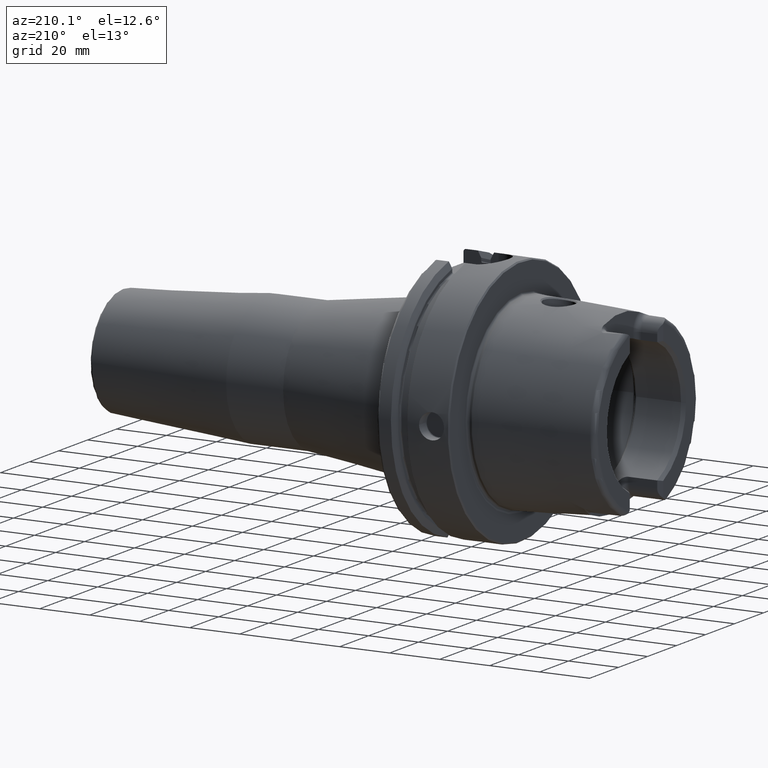
[diagram: clean part render]
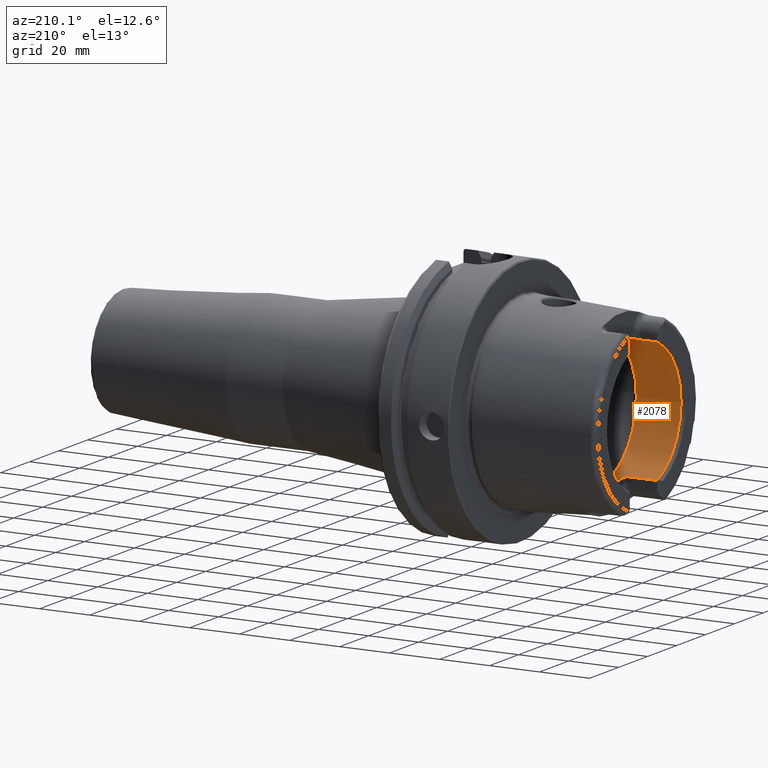
[diagram: same view with one face highlighted and labeled with its STEP entity id]
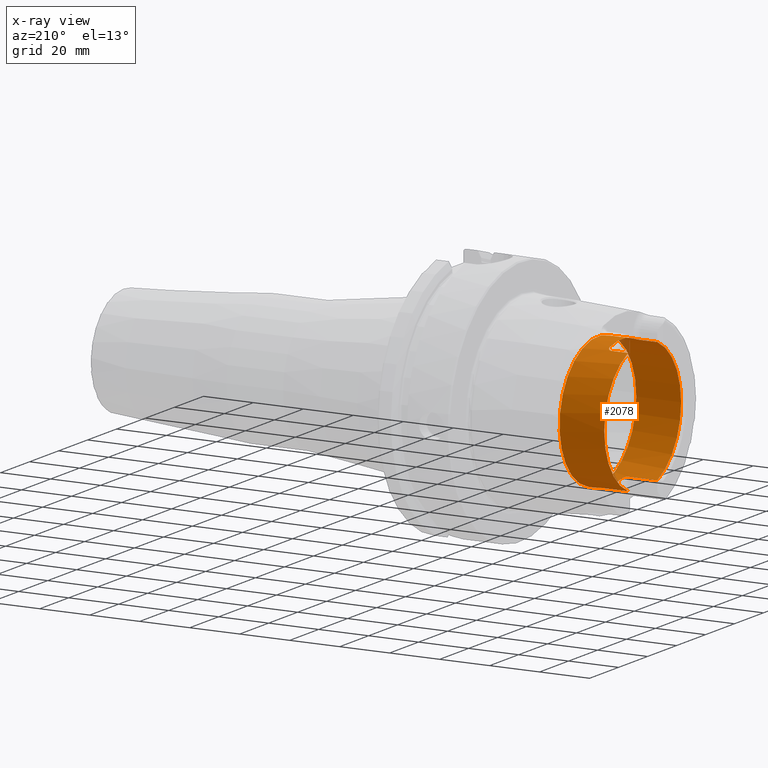
[diagram: x-ray of the same camera — body ghosted, the highlighted face saturated]
A machine part, auxiliary view. The second image highlights one B-rep face of the part: STEP entity #2078.
The next image is the same camera in x-ray: the body ghosted, the highlighted face saturated — about 1% of this face is hidden behind the body in this view.
In plain terms, the highlighted cylindrical surface (bore or boss wall) has radius 26.5 mm, axis along (-1, 0, 0).
Its self-contained STEP definition (entity closure, byte-faithful):
#80=B_SPLINE_CURVE_WITH_KNOTS('',3,(#4342,#4343,#4344,#4345,#4346,#4347,
#4348,#4349,#4350,#4351),.UNSPECIFIED.,.F.,.F.,(4,2,2,2,4),(0.307245873696209,
0.387318131676521,0.467390389656833,0.542677307505841,0.617964225354849),
 .UNSPECIFIED.);
#81=B_SPLINE_CURVE_WITH_KNOTS('',3,(#4360,#4361,#4362,#4363,#4364,#4365,
#4366,#4367,#4368,#4369),.UNSPECIFIED.,.F.,.F.,(4,2,2,2,4),(0.61796422535485,
0.694491364966707,0.771018504578565,0.849854597041439,0.928690689504313),
 .UNSPECIFIED.);
#82=B_SPLINE_CURVE_WITH_KNOTS('',3,(#4382,#4383,#4384,#4385,#4386,#4387,
#4388,#4389,#4390,#4391),.UNSPECIFIED.,.F.,.F.,(4,2,2,2,4),(0.617964225354849,
0.693251143203857,0.768538061052865,0.848610319033177,0.928682577013489),
 .UNSPECIFIED.);
#83=B_SPLINE_CURVE_WITH_KNOTS('',3,(#4411,#4412,#4413,#4414,#4415,#4416,
#4417,#4418,#4419,#4420),.UNSPECIFIED.,.F.,.F.,(4,2,2,2,4),(0.307245873696209,
0.387318131676521,0.467390389656833,0.542677307505841,0.617964225354849),
 .UNSPECIFIED.);
#202=CYLINDRICAL_SURFACE('',#2330,26.5);
#303=FACE_OUTER_BOUND('',#432,.T.);
#432=EDGE_LOOP('',(#1844,#1845,#1846,#1847,#1848,#1849,#1850,#1851,#1852,
#1853,#1854,#1855,#1856,#1857,#1858,#1859,#1860));
#485=LINE('',#3126,#593);
#493=LINE('',#3201,#601);
#497=LINE('',#3265,#605);
#556=LINE('',#4407,#664);
#560=LINE('',#4455,#668);
#593=VECTOR('',#2507,10.);
#601=VECTOR('',#2553,10.);
#605=VECTOR('',#2575,10.);
#664=VECTOR('',#2854,10.);
#668=VECTOR('',#2898,26.5);
#705=CIRCLE('',#2184,26.5);
#706=CIRCLE('',#2185,26.5);
#769=CIRCLE('',#2309,26.5);
#774=CIRCLE('',#2321,26.5);
#775=CIRCLE('',#2324,26.5);
#778=CIRCLE('',#2331,26.5);
#779=CIRCLE('',#2332,26.5);
#844=VERTEX_POINT('',#3116);
#847=VERTEX_POINT('',#3124);
#856=VERTEX_POINT('',#3173);
#858=VERTEX_POINT('',#3179);
#859=VERTEX_POINT('',#3181);
#865=VERTEX_POINT('',#3199);
#871=VERTEX_POINT('',#3232);
#876=VERTEX_POINT('',#3264);
#983=VERTEX_POINT('',#4340);
#985=VERTEX_POINT('',#4359);
#989=VERTEX_POINT('',#4380);
#990=VERTEX_POINT('',#4381);
#992=VERTEX_POINT('',#4401);
#994=VERTEX_POINT('',#4452);
#995=VERTEX_POINT('',#4453);
#1066=EDGE_CURVE('',#844,#847,#485,.T.);
#1079=EDGE_CURVE('',#858,#859,#705,.T.);
#1080=EDGE_CURVE('',#859,#856,#706,.T.);
#1089=EDGE_CURVE('',#858,#865,#493,.T.);
#1102=EDGE_CURVE('',#876,#871,#497,.T.);
#1260=EDGE_CURVE('',#983,#865,#80,.T.);
#1264=EDGE_CURVE('',#876,#985,#81,.T.);
#1270=EDGE_CURVE('',#989,#990,#82,.T.);
#1276=EDGE_CURVE('',#992,#990,#769,.T.);
#1279=EDGE_CURVE('',#989,#856,#556,.T.);
#1282=EDGE_CURVE('',#992,#847,#83,.T.);
#1286=EDGE_CURVE('',#983,#985,#774,.T.);
#1288=EDGE_CURVE('',#844,#871,#775,.T.);
#1292=EDGE_CURVE('',#994,#995,#778,.T.);
#1293=EDGE_CURVE('',#994,#859,#560,.T.);
#1294=EDGE_CURVE('',#995,#994,#779,.T.);
#1844=ORIENTED_EDGE('',*,*,#1292,.F.);
#1845=ORIENTED_EDGE('',*,*,#1293,.T.);
#1846=ORIENTED_EDGE('',*,*,#1079,.F.);
#1847=ORIENTED_EDGE('',*,*,#1089,.T.);
#1848=ORIENTED_EDGE('',*,*,#1260,.F.);
#1849=ORIENTED_EDGE('',*,*,#1286,.T.);
#1850=ORIENTED_EDGE('',*,*,#1264,.F.);
#1851=ORIENTED_EDGE('',*,*,#1102,.T.);
#1852=ORIENTED_EDGE('',*,*,#1288,.F.);
#1853=ORIENTED_EDGE('',*,*,#1066,.T.);
#1854=ORIENTED_EDGE('',*,*,#1282,.F.);
#1855=ORIENTED_EDGE('',*,*,#1276,.T.);
#1856=ORIENTED_EDGE('',*,*,#1270,.F.);
#1857=ORIENTED_EDGE('',*,*,#1279,.T.);
#1858=ORIENTED_EDGE('',*,*,#1080,.F.);
#1859=ORIENTED_EDGE('',*,*,#1293,.F.);
#1860=ORIENTED_EDGE('',*,*,#1294,.F.);
#2078=ADVANCED_FACE('',(#303),#202,.F.);
#2184=AXIS2_PLACEMENT_3D('',#3182,#2531,#2532);
#2185=AXIS2_PLACEMENT_3D('',#3183,#2533,#2534);
#2309=AXIS2_PLACEMENT_3D('',#4402,#2847,#2848);
#2321=AXIS2_PLACEMENT_3D('',#4429,#2875,#2876);
#2324=AXIS2_PLACEMENT_3D('',#4444,#2881,#2882);
#2330=AXIS2_PLACEMENT_3D('',#4451,#2894,#2895);
#2331=AXIS2_PLACEMENT_3D('',#4454,#2896,#2897);
#2332=AXIS2_PLACEMENT_3D('',#4456,#2899,#2900);
#2507=DIRECTION('',(1.,0.,0.));
#2531=DIRECTION('center_axis',(1.,0.,0.));
#2532=DIRECTION('ref_axis',(0.,-1.,0.));
#2533=DIRECTION('center_axis',(1.,0.,0.));
#2534=DIRECTION('ref_axis',(0.,-1.,0.));
#2553=DIRECTION('',(1.,0.,0.));
#2575=DIRECTION('',(-1.,0.,0.));
#2847=DIRECTION('center_axis',(-1.,0.,0.));
#2848=DIRECTION('ref_axis',(0.,1.,0.));
#2854=DIRECTION('',(-1.,0.,0.));
#2875=DIRECTION('center_axis',(-1.,0.,0.));
#2876=DIRECTION('ref_axis',(0.,1.,0.));
#2881=DIRECTION('center_axis',(1.,0.,0.));
#2882=DIRECTION('ref_axis',(0.,-1.,0.));
#2894=DIRECTION('center_axis',(-1.,0.,0.));
#2895=DIRECTION('ref_axis',(0.,1.,0.));
#2896=DIRECTION('center_axis',(-1.,0.,0.));
#2897=DIRECTION('ref_axis',(0.,0.,1.));
#2898=DIRECTION('',(-1.,0.,0.));
#2899=DIRECTION('center_axis',(-1.,0.,0.));
#2900=DIRECTION('ref_axis',(0.,0.,1.));
#3116=CARTESIAN_POINT('',(-48.5,10.01,-24.5367051577835));
#3124=CARTESIAN_POINT('',(-37.,10.01,-24.5367051577835));
#3126=CARTESIAN_POINT('',(-40.2903629710818,10.01,-24.5367051577835));
#3173=CARTESIAN_POINT('',(-48.5,-10.01,-24.5367051577835));
#3179=CARTESIAN_POINT('',(-48.5,-10.01,24.5367051577835));
#3181=CARTESIAN_POINT('',(-48.5,-26.5,3.24531401774049E-15));
#3182=CARTESIAN_POINT('Origin',(-48.5,0.,0.));
#3183=CARTESIAN_POINT('Origin',(-48.5,0.,0.));
#3199=CARTESIAN_POINT('',(-42.,-10.01,24.5367051577835));
#3201=CARTESIAN_POINT('',(-40.2903629710818,-10.01,24.5367051577835));
#3232=CARTESIAN_POINT('',(-48.5,10.01,24.5367051577835));
#3264=CARTESIAN_POINT('',(-42.,10.01,24.5367051577835));
#3265=CARTESIAN_POINT('',(-40.2903629710818,10.01,24.5367051577835));
#4340=CARTESIAN_POINT('',(-40.,-8.01,25.2604414054862));
#4342=CARTESIAN_POINT('Ctrl Pts',(-40.,-8.01,25.2604414054862));
#4343=CARTESIAN_POINT('Ctrl Pts',(-40.,-8.26442271458071,25.1797648285777));
#4344=CARTESIAN_POINT('Ctrl Pts',(-40.0513332778729,-8.53503831367686,25.0892968127514));
#4345=CARTESIAN_POINT('Ctrl Pts',(-40.2604388709541,-9.03317850506395,24.9142806373643));
#4346=CARTESIAN_POINT('Ctrl Pts',(-40.4182028025644,-9.2607746884821,24.8299262887475));
#4347=CARTESIAN_POINT('Ctrl Pts',(-40.7762398849713,-9.61038047170956,24.6966285655713));
#4348=CARTESIAN_POINT('Ctrl Pts',(-40.996584045901,-9.75993653512726,24.6374761492843));
#4349=CARTESIAN_POINT('Ctrl Pts',(-41.4829332858843,-9.95981108540838,24.557356442995));
#4350=CARTESIAN_POINT('Ctrl Pts',(-41.74904360717,-10.01,24.5367051577835));
#4351=CARTESIAN_POINT('Ctrl Pts',(-42.,-10.01,24.5367051577835));
#4359=CARTESIAN_POINT('',(-40.,8.01,25.2604414054862));
#4360=CARTESIAN_POINT('Ctrl Pts',(-42.,10.01,24.5367051577835));
#4361=CARTESIAN_POINT('Ctrl Pts',(-41.7449095346271,10.01,24.5367051577835));
#4362=CARTESIAN_POINT('Ctrl Pts',(-41.4747619014646,9.95816285425487,24.5580391842641));
#4363=CARTESIAN_POINT('Ctrl Pts',(-40.9823460284033,9.75229566196282,24.640515927451));
#4364=CARTESIAN_POINT('Ctrl Pts',(-40.7599680829949,9.59839520774108,24.7013267120605));
#4365=CARTESIAN_POINT('Ctrl Pts',(-40.4063494382929,9.24477656303909,24.8358806096526));
#4366=CARTESIAN_POINT('Ctrl Pts',(-40.2529543645221,9.01930384320105,24.9192727261742));
#4367=CARTESIAN_POINT('Ctrl Pts',(-40.049776768453,8.52719637786957,25.0919293188873));
#4368=CARTESIAN_POINT('Ctrl Pts',(-40.,8.26049490494288,25.1810103236462));
#4369=CARTESIAN_POINT('Ctrl Pts',(-40.,8.01,25.2604414054862));
#4380=CARTESIAN_POINT('',(-37.,-10.01,-24.5367051577835));
#4381=CARTESIAN_POINT('',(-35.,-8.01,-25.2604414054862));
#4382=CARTESIAN_POINT('Ctrl Pts',(-37.,-10.01,-24.5367051577835));
#4383=CARTESIAN_POINT('Ctrl Pts',(-36.74904360717,-10.01,-24.5367051577835));
#4384=CARTESIAN_POINT('Ctrl Pts',(-36.4829332858843,-9.95981108540838,-24.557356442995));
#4385=CARTESIAN_POINT('Ctrl Pts',(-35.9965840459011,-9.75993653512726,-24.6374761492843));
#4386=CARTESIAN_POINT('Ctrl Pts',(-35.7762398849713,-9.61038047170956,-24.6966285655713));
#4387=CARTESIAN_POINT('Ctrl Pts',(-35.4182028025644,-9.2607746884821,-24.8299262887475));
#4388=CARTESIAN_POINT('Ctrl Pts',(-35.2604388709541,-9.03317850506395,-24.9142806373643));
#4389=CARTESIAN_POINT('Ctrl Pts',(-35.0513332778729,-8.53503831367686,-25.0892968127514));
#4390=CARTESIAN_POINT('Ctrl Pts',(-35.,-8.26442271458071,-25.1797648285777));
#4391=CARTESIAN_POINT('Ctrl Pts',(-35.,-8.01,-25.2604414054862));
#4401=CARTESIAN_POINT('',(-35.,8.01,-25.2604414054862));
#4402=CARTESIAN_POINT('Origin',(-35.,0.,0.));
#4407=CARTESIAN_POINT('',(-40.2903629710818,-10.01,-24.5367051577835));
#4411=CARTESIAN_POINT('Ctrl Pts',(-35.,8.01,-25.2604414054862));
#4412=CARTESIAN_POINT('Ctrl Pts',(-35.,8.26442271458071,-25.1797648285777));
#4413=CARTESIAN_POINT('Ctrl Pts',(-35.0513332778729,8.53503831367686,-25.0892968127514));
#4414=CARTESIAN_POINT('Ctrl Pts',(-35.2604388709541,9.03317850506395,-24.9142806373643));
#4415=CARTESIAN_POINT('Ctrl Pts',(-35.4182028025644,9.2607746884821,-24.8299262887475));
#4416=CARTESIAN_POINT('Ctrl Pts',(-35.7762398849713,9.61038047170956,-24.6966285655713));
#4417=CARTESIAN_POINT('Ctrl Pts',(-35.9965840459011,9.75993653512726,-24.6374761492843));
#4418=CARTESIAN_POINT('Ctrl Pts',(-36.4829332858843,9.95981108540838,-24.557356442995));
#4419=CARTESIAN_POINT('Ctrl Pts',(-36.74904360717,10.01,-24.5367051577835));
#4420=CARTESIAN_POINT('Ctrl Pts',(-37.,10.01,-24.5367051577835));
#4429=CARTESIAN_POINT('Origin',(-40.,0.,0.));
#4444=CARTESIAN_POINT('Origin',(-48.5,0.,0.));
#4451=CARTESIAN_POINT('Origin',(-40.2903629710818,0.,0.));
#4452=CARTESIAN_POINT('',(-30.5807259421637,-26.5,3.24531401774049E-15));
#4453=CARTESIAN_POINT('',(-30.5807259421637,-3.24531401774049E-15,-26.5));
#4454=CARTESIAN_POINT('Origin',(-30.5807259421637,0.,0.));
#4455=CARTESIAN_POINT('',(-40.2903629710818,-26.5,3.24531401774049E-15));
#4456=CARTESIAN_POINT('Origin',(-30.5807259421637,0.,0.));